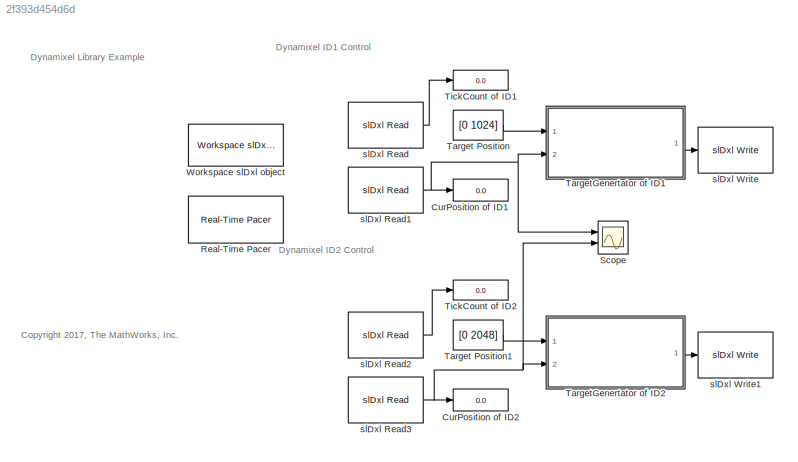
MODEL slx_2f393d454d6d
KIND model
CONFIG AbsTol = auto
CONFIG EnableMultiTasking = off
CONFIG FixedStep = auto
CONFIG MaxStep = auto
CONFIG MinStep = auto
CONFIG RelTol = 1e-3
CONFIG SampleTimeConstraint = Unconstrained
CONFIG Solver = VariableStepAuto
CONFIG SolverName = VariableStepAuto
CONFIG StartTime = 0.0
CONFIG StopTime = inf
BLOCK [Display] CurPosition of ID1
  Decimation = 1
  Format = long
  Ports = [1]
BLOCK [Display] CurPosition of ID2
  Decimation = 1
  Format = long
  Ports = [1]
BLOCK [Reference] Real-Time Pacer  REF=slDxl_lib/Real-Time Pacer
  Ports = []
  SourceBlock = slDxl_lib/Real-Time Pacer
  SourceType = RealTime_Pacer
BLOCK [Scope] Scope
  NumInputPorts = 2
  Ports = [2]
  ScopeSpecificationString = Simulink.scopes.TimeScopeBlockCfg('CurrentConfiguration', extmgr.ConfigurationSet(extmgr.Configuration('Core','General UI',true),extmgr.Configuration('Core','Source UI',true),extmgr.Configuration('Sources','WiredSimulink',true),extmgr.Configuration('Visuals','Time Domain',true,'SerializedDisplays',{struct('MinYLimReal','-254.625','MaxYLimReal','2301.625','YLabelReal','','MinYLimMag',' 0.00000','Ma...<+1361ch>
BLOCK [Constant] Target Position
  Value = [0 1024]
BLOCK [Constant] Target Position1
  Value = [0 2048]
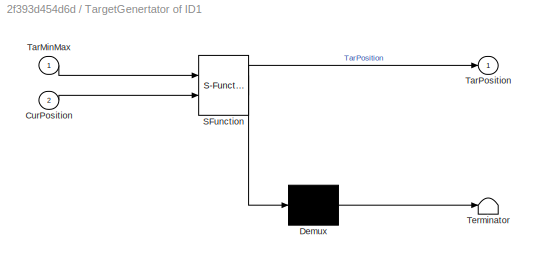
BLOCK [SubSystem] TargetGenertator of ID1
  ErrorFcn = Stateflow.Translate.translate
  PermitHierarchicalResolution = ExplicitOnly
  Ports = [2, 1]
  RequestExecContextInheritance = off
  SFBlockType = Chart
  TreatAsAtomicUnit = on
  Variant = off
BLOCK [Demux] TargetGenertator of ID1/ Demux 
  Outputs = 1
  Ports = [1, 1]
BLOCK [S-Function] TargetGenertator of ID1/ SFunction 
  EnableBusSupport = on
  FunctionName = sf_sfun
  PortCounts = [2 2]
  Ports = [2, 2]
  SFcnIsStateOwnerBlock = off
  SFunctionDeploymentMode = off
  Tag = Stateflow S-Function slDxl_Ex 3
BLOCK [Terminator] TargetGenertator of ID1/ Terminator 
BLOCK [Inport] TargetGenertator of ID1/CurPosition
  IconDisplay = Port number
  Port = 2
BLOCK [Inport] TargetGenertator of ID1/TarMinMax
  IconDisplay = Port number
BLOCK [Outport] TargetGenertator of ID1/TarPosition
  IconDisplay = Port number
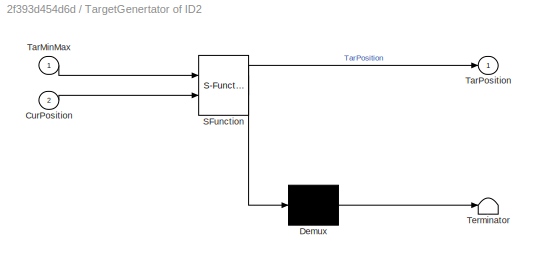
BLOCK [SubSystem] TargetGenertator of ID2
  ErrorFcn = Stateflow.Translate.translate
  PermitHierarchicalResolution = ExplicitOnly
  Ports = [2, 1]
  RequestExecContextInheritance = off
  SFBlockType = Chart
  TreatAsAtomicUnit = on
  Variant = off
BLOCK [Demux] TargetGenertator of ID2/ Demux 
  Outputs = 1
  Ports = [1, 1]
BLOCK [S-Function] TargetGenertator of ID2/ SFunction 
  EnableBusSupport = on
  FunctionName = sf_sfun
  PortCounts = [2 2]
  Ports = [2, 2]
  SFcnIsStateOwnerBlock = off
  SFunctionDeploymentMode = off
  Tag = Stateflow S-Function slDxl_Ex 1
BLOCK [Terminator] TargetGenertator of ID2/ Terminator 
BLOCK [Inport] TargetGenertator of ID2/CurPosition
  IconDisplay = Port number
  Port = 2
BLOCK [Inport] TargetGenertator of ID2/TarMinMax
  IconDisplay = Port number
BLOCK [Outport] TargetGenertator of ID2/TarPosition
  IconDisplay = Port number
BLOCK [Display] TickCount of ID1
  Decimation = 1
  Format = long
  Ports = [1]
BLOCK [Display] TickCount of ID2
  Decimation = 1
  Format = long
  Ports = [1]
BLOCK [Reference] Workspace slDxl object  REF=slDxl_lib/Workspace slDxl object
  Ports = []
  SourceBlock = slDxl_lib/Workspace slDxl object
  SourceType = slDxl Setup
BLOCK [Reference] slDxl Read  REF=slDxl_lib/slDxl Read
  Ports = [0, 1]
  SourceBlock = slDxl_lib/slDxl Read
BLOCK [Reference] slDxl Read1  REF=slDxl_lib/slDxl Read
  Ports = [0, 1]
  SourceBlock = slDxl_lib/slDxl Read
BLOCK [Reference] slDxl Read2  REF=slDxl_lib/slDxl Read
  Ports = [0, 1]
  SourceBlock = slDxl_lib/slDxl Read
BLOCK [Reference] slDxl Read3  REF=slDxl_lib/slDxl Read
  Ports = [0, 1]
  SourceBlock = slDxl_lib/slDxl Read
BLOCK [Reference] slDxl Write  REF=slDxl_lib/slDxl Write
  Ports = [1]
  SourceBlock = slDxl_lib/slDxl Write
BLOCK [Reference] slDxl Write1  REF=slDxl_lib/slDxl Write
  Ports = [1]
  SourceBlock = slDxl_lib/slDxl Write
ANNOTATION (root): Dynamixel Library Example
ANNOTATION (root): <copyright redacted>
ANNOTATION (root): Dynamixel ID1 Control
ANNOTATION (root): Dynamixel ID2 Control
LINE Target Position1:1 -> TargetGenertator of ID2:1
LINE Target Position:1 -> TargetGenertator of ID1:1
LINE TargetGenertator of ID1:1 -> slDxl Write:1
LINE TargetGenertator of ID2:1 -> slDxl Write1:1
NET slDxl Read1:1 -> CurPosition of ID1:1, Scope:1, TargetGenertator of ID1:2
LINE slDxl Read2:1 -> TickCount of ID2:1
NET slDxl Read3:1 -> CurPosition of ID2:1, Scope:2, TargetGenertator of ID2:2
LINE slDxl Read:1 -> TickCount of ID1:1
note: NET lines group one-source signal fan-out (src -> all destinations, sorted); 1:1 wires keep LINE
CHART TargetGenertator of ID2 states=3 transitions=6
  STATE_LABEL 'MinTarget\nen:\nTarPosition = TarMinMax(1);'
  STATE_LABEL 'CheckPosition\nen:\nThres = 10;\n'
  STATE_LABEL 'MaxTarget\nen:\nTarPosition = TarMinMax(2);'
CHART TargetGenertator of ID1 states=3 transitions=6
  STATE_LABEL 'MinTarget\nen:\nTarPosition = TarMinMax(1);'
  STATE_LABEL 'CheckPosition\nen:\nThres = 10;\n'
  STATE_LABEL 'MaxTarget\nen:\nTarPosition = TarMinMax(2);'
